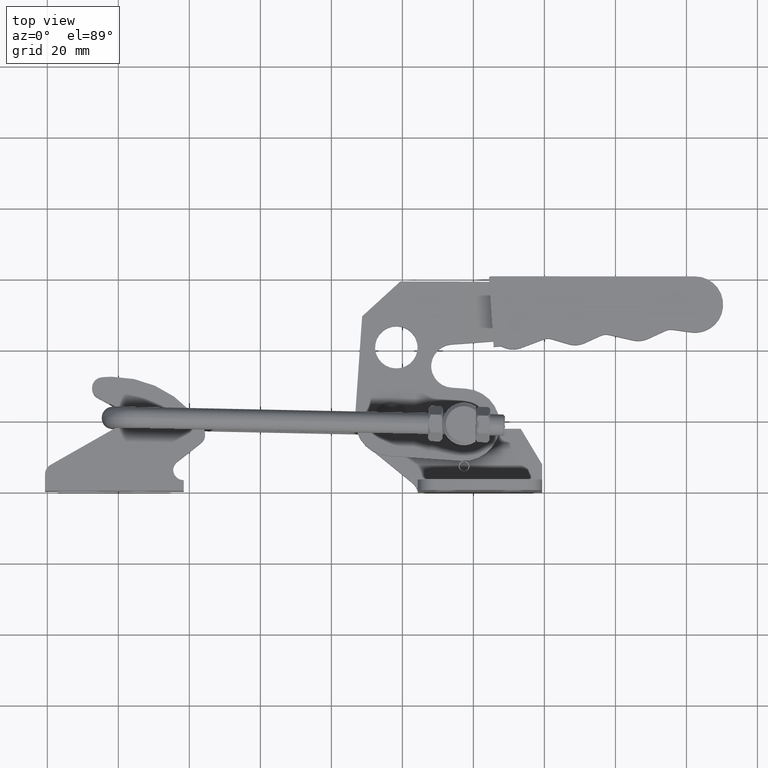
[diagram: clean part render]
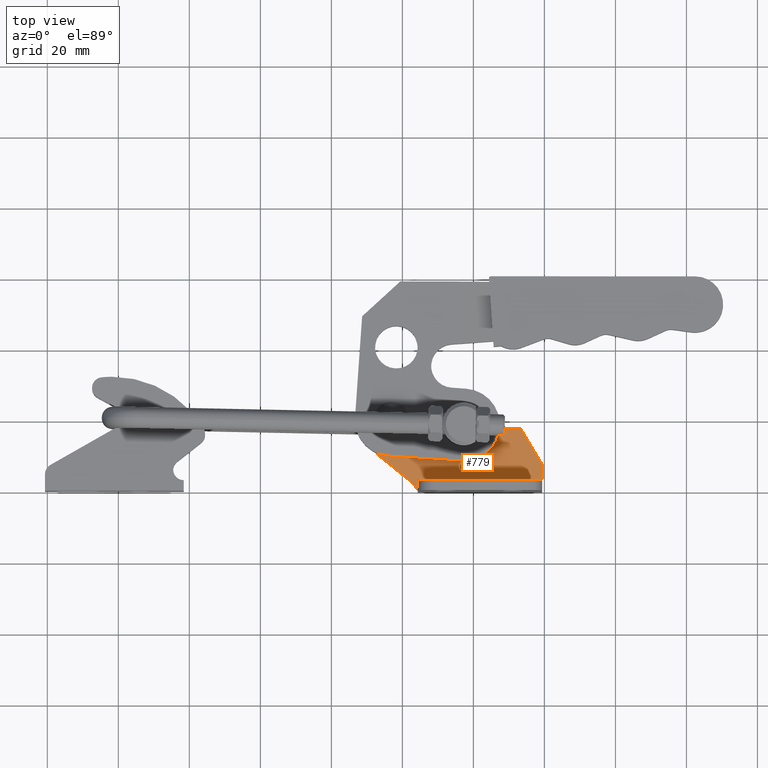
[diagram: same view with one face highlighted and labeled with its STEP entity id]
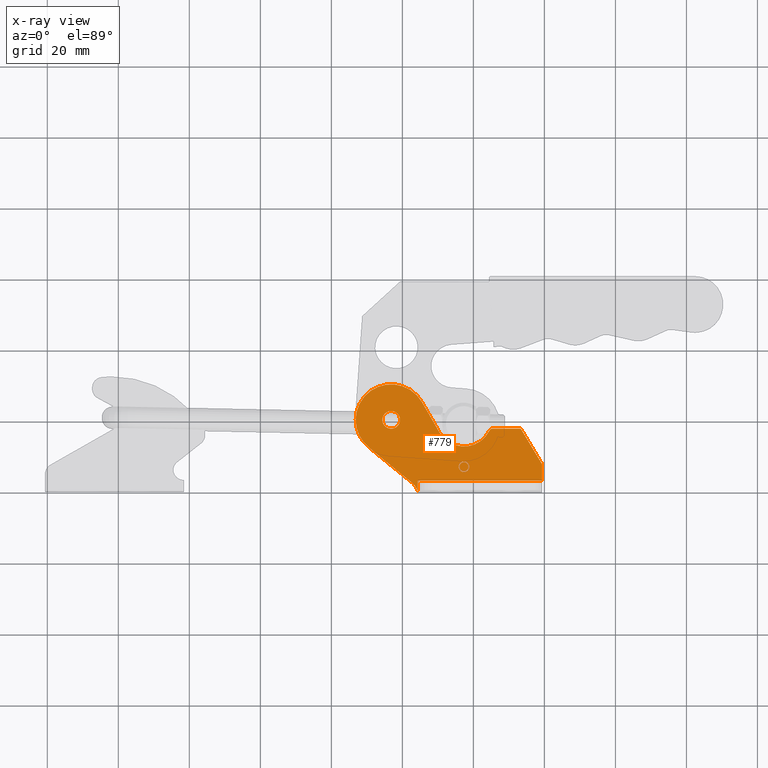
[diagram: x-ray of the same camera — body ghosted, the highlighted face saturated]
A machine part, top view. The second image highlights one B-rep face of the part: STEP entity #779.
The next image is the same camera in x-ray: the body ghosted, the highlighted face saturated — about 0% of this face is hidden behind the body in this view.
In plain terms, the highlighted planar face has unit normal (0, -0, -1).
Its self-contained STEP definition (entity closure, byte-faithful):
#19 = ORIENTED_EDGE ( 'NONE', *, *, #1735, .F. ) ;
#84 = CARTESIAN_POINT ( 'NONE',  ( -37.37134939672738900, 2.494397188489918500, 2.999999999999537300 ) ) ;
#104 = CARTESIAN_POINT ( 'NONE',  ( -21.15470053837901800, 6.902160921898794000, 2.999999999999537300 ) ) ;
#128 = VERTEX_POINT ( 'NONE', #2259 ) ;
#155 = CARTESIAN_POINT ( 'NONE',  ( -35.66278468269342000, 0.0000000000000000000, 2.999999999999537300 ) ) ;
#299 = VECTOR ( 'NONE', #6152, 1000.000000000000000 ) ;
#338 = ORIENTED_EDGE ( 'NONE', *, *, #4036, .F. ) ;
#444 = CARTESIAN_POINT ( 'NONE',  ( -22.65470053837901800, 6.902160921898794000, 2.999999999999537300 ) ) ;
#503 = VECTOR ( 'NONE', #6677, 1000.000000000000000 ) ;
#590 = DIRECTION ( 'NONE',  ( 5.309730411375259600E-017, -1.035205200069190100E-031, -1.000000000000000000 ) ) ;
#653 = CARTESIAN_POINT ( 'NONE',  ( -6.663306728654911900, 17.59999999999976300, 2.999999999999538600 ) ) ;
#697 = DIRECTION ( 'NONE',  ( 1.000000000000000000, -2.775557561562891400E-017, 5.309730411375259600E-017 ) ) ;
#779 = ADVANCED_FACE ( 'NONE', ( #9261, #7455, #3222 ), #8611, .F. ) ;
#832 = VERTEX_POINT ( 'NONE', #4849 ) ;
#840 = LINE ( 'NONE', #6172, #8342 ) ;
#908 = ORIENTED_EDGE ( 'NONE', *, *, #2830, .F. ) ;
#914 = AXIS2_PLACEMENT_3D ( 'NONE', #1354, #5016, #1489 ) ;
#917 = CARTESIAN_POINT ( 'NONE',  ( -35.66102501600772700, 3.000000000000000900, 2.999999999999537300 ) ) ;
#927 = EDGE_CURVE ( 'NONE', #6850, #7038, #7560, .T. ) ;
#1037 = VECTOR ( 'NONE', #9507, 1000.000000000000000 ) ;
#1056 = VERTEX_POINT ( 'NONE', #3751 ) ;
#1166 = CARTESIAN_POINT ( 'NONE',  ( -43.15470053837921000, 20.10000000000000500, 2.999999999999536800 ) ) ;
#1188 = CIRCLE ( 'NONE', #9555, 1.500000000000001300 ) ;
#1196 = DIRECTION ( 'NONE',  ( -1.000000000000000000, 0.0000000000000000000, 0.0000000000000000000 ) ) ;
#1222 = VECTOR ( 'NONE', #9151, 1000.000000000000000 ) ;
#1227 = CARTESIAN_POINT ( 'NONE',  ( -14.59244279008085200, 17.59999999999976300, 2.999999999999538100 ) ) ;
#1229 = CARTESIAN_POINT ( 'NONE',  ( -22.65470053837901800, 6.902160921898794000, 2.999999999999537300 ) ) ;
#1272 = CIRCLE ( 'NONE', #1404, 10.00000000000000900 ) ;
#1307 = EDGE_CURVE ( 'NONE', #7639, #6850, #3438, .T. ) ;
#1354 = CARTESIAN_POINT ( 'NONE',  ( -22.65470053837901800, 6.902160921898794000, 2.999999999999537300 ) ) ;
#1358 = EDGE_CURVE ( 'NONE', #2512, #2687, #6275, .T. ) ;
#1369 = EDGE_CURVE ( 'NONE', #3548, #9340, #2296, .T. ) ;
#1392 = CARTESIAN_POINT ( 'NONE',  ( -35.66102501600772700, 0.0000000000000000000, 2.999999999999537300 ) ) ;
#1404 = AXIS2_PLACEMENT_3D ( 'NONE', #1166, #6413, #1928 ) ;
#1466 = DIRECTION ( 'NONE',  ( 0.0000000000000000000, 1.000000000000000000, -5.525634816903321600E-018 ) ) ;
#1472 = EDGE_CURVE ( 'NONE', #6352, #832, #3782, .T. ) ;
#1489 = DIRECTION ( 'NONE',  ( -1.000000000000000000, 0.0000000000000000000, 0.0000000000000000000 ) ) ;
#1596 = VECTOR ( 'NONE', #3856, 1000.000000000000000 ) ;
#1680 = CARTESIAN_POINT ( 'NONE',  ( -14.59244279008085200, 16.59999999999982000, 2.999999999999538100 ) ) ;
#1694 = CARTESIAN_POINT ( 'NONE',  ( -43.15470053837923100, 20.10000000000000900, 2.999999999999537300 ) ) ;
#1698 = CIRCLE ( 'NONE', #9638, 1.500000000000001300 ) ;
#1735 = EDGE_CURVE ( 'NONE', #2687, #6352, #7189, .T. ) ;
#1757 = ORIENTED_EDGE ( 'NONE', *, *, #9843, .T. ) ;
#1824 = EDGE_LOOP ( 'NONE', ( #3911, #908, #7558, #19, #7992, #2551, #6503, #9217, #6588, #4152, #6906, #338, #7538, #2572, #7418 ) ) ;
#1852 = CARTESIAN_POINT ( 'NONE',  ( -0.6610250160080863900, 3.000000000000000000, 2.999999999999539000 ) ) ;
#1854 = VERTEX_POINT ( 'NONE', #5996 ) ;
#1905 = VERTEX_POINT ( 'NONE', #9199 ) ;
#1928 = DIRECTION ( 'NONE',  ( 1.000000000000000000, 0.0000000000000000000, 4.336808689942014000E-017 ) ) ;
#1943 = CARTESIAN_POINT ( 'NONE',  ( -29.58146922944036200, 16.59751633350799700, 2.999999999999537700 ) ) ;
#1995 = DIRECTION ( 'NONE',  ( -1.000000000000000000, 0.0000000000000000000, 0.0000000000000000000 ) ) ;
#2066 = VERTEX_POINT ( 'NONE', #4085 ) ;
#2083 = AXIS2_PLACEMENT_3D ( 'NONE', #2787, #8037, #3523 ) ;
#2190 = CARTESIAN_POINT ( 'NONE',  ( -0.6547005383795384500, 0.0000000000000000000, 2.999999999999539000 ) ) ;
#2259 = CARTESIAN_POINT ( 'NONE',  ( -45.65470053837923800, 20.10000000000000900, 2.999999999999537300 ) ) ;
#2296 = CIRCLE ( 'NONE', #914, 1.500000000000001300 ) ;
#2337 = DIRECTION ( 'NONE',  ( -0.7754255194175293500, 0.6314390420587364700, -5.977012531472729700E-017 ) ) ;
#2341 = CARTESIAN_POINT ( 'NONE',  ( -22.65470053837901800, 6.902160921898794000, 2.999999999999537300 ) ) ;
#2379 = AXIS2_PLACEMENT_3D ( 'NONE', #3333, #4938, #6691 ) ;
#2401 = EDGE_CURVE ( 'NONE', #2405, #3151, #9097, .T. ) ;
#2405 = VERTEX_POINT ( 'NONE', #4022 ) ;
#2427 = DIRECTION ( 'NONE',  ( 1.000000000000000000, 0.0000000000000000000, 0.0000000000000000000 ) ) ;
#2441 = DIRECTION ( 'NONE',  ( 1.000000000000000000, 0.0000000000000000000, 0.0000000000000000000 ) ) ;
#2493 = ORIENTED_EDGE ( 'NONE', *, *, #8742, .T. ) ;
#2512 = VERTEX_POINT ( 'NONE', #1227 ) ;
#2551 = ORIENTED_EDGE ( 'NONE', *, *, #8423, .F. ) ;
#2572 = ORIENTED_EDGE ( 'NONE', *, *, #1307, .T. ) ;
#2617 = VERTEX_POINT ( 'NONE', #7350 ) ;
#2649 = CARTESIAN_POINT ( 'NONE',  ( -35.66102501600772700, 3.000000000000000900, 2.999999999999537300 ) ) ;
#2666 = EDGE_CURVE ( 'NONE', #7639, #6064, #8228, .T. ) ;
#2687 = VERTEX_POINT ( 'NONE', #7414 ) ;
#2761 = CARTESIAN_POINT ( 'NONE',  ( -40.74541713113004000, -1.649056179500790300, 2.999999999999537300 ) ) ;
#2787 = CARTESIAN_POINT ( 'NONE',  ( -40.74541713113004000, -1.649056179500790300, 2.999999999999537300 ) ) ;
#2830 = EDGE_CURVE ( 'NONE', #832, #1056, #840, .T. ) ;
#2865 = DIRECTION ( 'NONE',  ( 1.000000000000000000, -2.775557561562891400E-017, 5.309730411375259600E-017 ) ) ;
#2937 = CIRCLE ( 'NONE', #9161, 1.250000000000001100 ) ;
#2985 = ORIENTED_EDGE ( 'NONE', *, *, #5833, .T. ) ;
#3085 = DIRECTION ( 'NONE',  ( -1.000000000000000000, 0.0000000000000000000, 0.0000000000000000000 ) ) ;
#3151 = VERTEX_POINT ( 'NONE', #6629 ) ;
#3222 = FACE_BOUND ( 'NONE', #7101, .T. ) ;
#3333 = CARTESIAN_POINT ( 'NONE',  ( -22.65470053837901800, 6.902160921898794000, 2.999999999999537300 ) ) ;
#3351 = CARTESIAN_POINT ( 'NONE',  ( -22.65470053837923500, 20.59999999999988400, 2.999999999999538100 ) ) ;
#3438 = LINE ( 'NONE', #1392, #7203 ) ;
#3451 = DIRECTION ( 'NONE',  ( 0.5003104583114885700, -0.8658460863826481500, 5.765170760582720500E-017 ) ) ;
#3523 = DIRECTION ( 'NONE',  ( 1.000000000000000000, -4.058054758129817300E-017, 8.116109516259634600E-017 ) ) ;
#3548 = VERTEX_POINT ( 'NONE', #5886 ) ;
#3557 = VECTOR ( 'NONE', #2865, 1000.000000000000000 ) ;
#3592 = CARTESIAN_POINT ( 'NONE',  ( -22.55470053837902000, 8.398823876608371800, 2.999999999999537300 ) ) ;
#3628 = ORIENTED_EDGE ( 'NONE', *, *, #6103, .F. ) ;
#3735 = VECTOR ( 'NONE', #1466, 1000.000000000000000 ) ;
#3751 = CARTESIAN_POINT ( 'NONE',  ( -0.6610250160080863900, -8.673617379884035500E-016, 2.999999999999539000 ) ) ;
#3782 = LINE ( 'NONE', #4629, #1596 ) ;
#3797 = CIRCLE ( 'NONE', #7456, 1.250000000000001100 ) ;
#3850 = EDGE_LOOP ( 'NONE', ( #3628, #7897 ) ) ;
#3856 = DIRECTION ( 'NONE',  ( 0.0000000000000000000, -1.000000000000000000, 5.525634816903321600E-018 ) ) ;
#3911 = ORIENTED_EDGE ( 'NONE', *, *, #4196, .F. ) ;
#3961 = EDGE_CURVE ( 'NONE', #8851, #3548, #1188, .T. ) ;
#3992 = EDGE_CURVE ( 'NONE', #3151, #8779, #2937, .T. ) ;
#4014 = CIRCLE ( 'NONE', #6825, 0.9999999999999401600 ) ;
#4022 = CARTESIAN_POINT ( 'NONE',  ( -22.75470053837901900, 8.148154501336504700, 2.999999999999537300 ) ) ;
#4036 = EDGE_CURVE ( 'NONE', #6064, #1905, #8668, .T. ) ;
#4085 = CARTESIAN_POINT ( 'NONE',  ( -29.58146922944036200, 16.59751633350799700, 2.999999999999537700 ) ) ;
#4105 = DIRECTION ( 'NONE',  ( 1.000000000000000000, 0.0000000000000000000, 5.421010862427561600E-017 ) ) ;
#4134 = CARTESIAN_POINT ( 'NONE',  ( -6.663306728654911900, 17.59999999999976300, 2.999999999999538600 ) ) ;
#4152 = ORIENTED_EDGE ( 'NONE', *, *, #5807, .F. ) ;
#4159 = CARTESIAN_POINT ( 'NONE',  ( -22.75470053837901900, 8.398823876608371800, 2.999999999999537300 ) ) ;
#4196 = EDGE_CURVE ( 'NONE', #1056, #7038, #5746, .T. ) ;
#4278 = CARTESIAN_POINT ( 'NONE',  ( -43.15470053837923100, 20.10000000000000900, 2.999999999999537300 ) ) ;
#4343 = DIRECTION ( 'NONE',  ( 2.465190328815661900E-031, -1.020467737676037100E-031, -1.000000000000000000 ) ) ;
#4371 = CARTESIAN_POINT ( 'NONE',  ( -22.75470053837901900, 8.398823876608371800, 2.999999999999537300 ) ) ;
#4398 = CARTESIAN_POINT ( 'NONE',  ( -22.65470053837901800, 6.902160921898794000, 2.999999999999537300 ) ) ;
#4426 = CARTESIAN_POINT ( 'NONE',  ( -21.40470053837901800, 6.902160921898794000, 2.999999999999537300 ) ) ;
#4618 = AXIS2_PLACEMENT_3D ( 'NONE', #3351, #8597, #4105 ) ;
#4629 = CARTESIAN_POINT ( 'NONE',  ( -0.6547005383795384500, 0.0000000000000000000, 2.999999999999539000 ) ) ;
#4773 = AXIS2_PLACEMENT_3D ( 'NONE', #2761, #590, #697 ) ;
#4849 = CARTESIAN_POINT ( 'NONE',  ( -0.6547005383795384500, 0.0000000000000000000, 2.999999999999539000 ) ) ;
#4899 = VERTEX_POINT ( 'NONE', #6062 ) ;
#4903 = EDGE_CURVE ( 'NONE', #1905, #1854, #5007, .T. ) ;
#4938 = DIRECTION ( 'NONE',  ( -2.465190328815661900E-031, 1.020467737676037100E-031, 1.000000000000000000 ) ) ;
#4953 = VECTOR ( 'NONE', #3451, 1000.000000000000200 ) ;
#5007 = LINE ( 'NONE', #84, #6572 ) ;
#5016 = DIRECTION ( 'NONE',  ( 2.465190328815661900E-031, -1.020467737676037100E-031, -1.000000000000000000 ) ) ;
#5023 = DIRECTION ( 'NONE',  ( 1.000000000000000000, 0.0000000000000000000, 0.0000000000000000000 ) ) ;
#5141 = DIRECTION ( 'NONE',  ( -1.000000000000000000, 0.0000000000000000000, 0.0000000000000000000 ) ) ;
#5196 = LINE ( 'NONE', #1943, #4953 ) ;
#5447 = DIRECTION ( 'NONE',  ( 0.0000000000000000000, 1.000000000000000000, -5.525634816903321600E-018 ) ) ;
#5482 = LINE ( 'NONE', #3592, #9572 ) ;
#5551 = CARTESIAN_POINT ( 'NONE',  ( -15.48824920655840900, 17.04444444444425200, 2.999999999999538100 ) ) ;
#5567 = VERTEX_POINT ( 'NONE', #7516 ) ;
#5670 = DIRECTION ( 'NONE',  ( 2.465190328815661900E-031, -1.020467737676037100E-031, -1.000000000000000000 ) ) ;
#5746 = LINE ( 'NONE', #8942, #3735 ) ;
#5807 = EDGE_CURVE ( 'NONE', #1854, #4899, #1272, .T. ) ;
#5833 = EDGE_CURVE ( 'NONE', #9340, #2405, #9289, .T. ) ;
#5886 = CARTESIAN_POINT ( 'NONE',  ( -24.15470053837901800, 6.902160921898794000, 2.999999999999537300 ) ) ;
#5996 = CARTESIAN_POINT ( 'NONE',  ( -49.46909095896657500, 12.34574480582470500, 2.999999999999536400 ) ) ;
#6060 = CIRCLE ( 'NONE', #9189, 2.500000000000002200 ) ;
#6062 = CARTESIAN_POINT ( 'NONE',  ( -53.15470053837921700, 20.10000000000000500, 2.999999999999536800 ) ) ;
#6064 = VERTEX_POINT ( 'NONE', #155 ) ;
#6103 = EDGE_CURVE ( 'NONE', #6246, #128, #6060, .T. ) ;
#6152 = DIRECTION ( 'NONE',  ( 1.000000000000000000, -2.775557561562891400E-017, 3.857767021771941300E-017 ) ) ;
#6172 = CARTESIAN_POINT ( 'NONE',  ( -0.6547005383795384500, 0.0000000000000000000, 2.999999999999539000 ) ) ;
#6246 = VERTEX_POINT ( 'NONE', #6340 ) ;
#6275 = LINE ( 'NONE', #4134, #299 ) ;
#6340 = CARTESIAN_POINT ( 'NONE',  ( -40.65470053837923100, 20.10000000000000900, 2.999999999999537300 ) ) ;
#6352 = VERTEX_POINT ( 'NONE', #6439 ) ;
#6413 = DIRECTION ( 'NONE',  ( 2.465190328815661900E-031, -1.020467737676037100E-031, -1.000000000000000000 ) ) ;
#6439 = CARTESIAN_POINT ( 'NONE',  ( -0.6547005383795384500, 7.600000000000002300, 2.999999999999539000 ) ) ;
#6447 = EDGE_CURVE ( 'NONE', #128, #6246, #9263, .T. ) ;
#6471 = DIRECTION ( 'NONE',  ( -2.465190328815661900E-031, 1.020467737676037100E-031, 1.000000000000000000 ) ) ;
#6503 = ORIENTED_EDGE ( 'NONE', *, *, #7068, .F. ) ;
#6523 = EDGE_CURVE ( 'NONE', #4899, #5567, #8736, .T. ) ;
#6572 = VECTOR ( 'NONE', #2337, 1000.000000000000100 ) ;
#6588 = ORIENTED_EDGE ( 'NONE', *, *, #6523, .F. ) ;
#6629 = CARTESIAN_POINT ( 'NONE',  ( -23.90470053837901800, 6.902160921898794000, 2.999999999999537300 ) ) ;
#6677 = DIRECTION ( 'NONE',  ( -1.000000000000000000, 2.775557561562891400E-017, -5.306869081471474300E-017 ) ) ;
#6691 = DIRECTION ( 'NONE',  ( -1.000000000000000000, 6.938893903907222500E-016, 0.0000000000000000000 ) ) ;
#6733 = EDGE_CURVE ( 'NONE', #8779, #2617, #3797, .T. ) ;
#6775 = VERTEX_POINT ( 'NONE', #6869 ) ;
#6800 = AXIS2_PLACEMENT_3D ( 'NONE', #8863, #4343, #9716 ) ;
#6825 = AXIS2_PLACEMENT_3D ( 'NONE', #1680, #6923, #2427 ) ;
#6850 = VERTEX_POINT ( 'NONE', #917 ) ;
#6869 = CARTESIAN_POINT ( 'NONE',  ( -22.55470053837902000, 8.398823876608371800, 2.999999999999537300 ) ) ;
#6906 = ORIENTED_EDGE ( 'NONE', *, *, #4903, .F. ) ;
#6923 = DIRECTION ( 'NONE',  ( 2.465190328815661900E-031, -1.020467737676037100E-031, -1.000000000000000000 ) ) ;
#6939 = DIRECTION ( 'NONE',  ( 0.0000000000000000000, 0.0000000000000000000, 1.000000000000000000 ) ) ;
#7038 = VERTEX_POINT ( 'NONE', #1852 ) ;
#7068 = EDGE_CURVE ( 'NONE', #2066, #8591, #8147, .T. ) ;
#7101 = EDGE_LOOP ( 'NONE', ( #1757, #2493, #9654, #9400, #2985, #8229, #7769, #8011 ) ) ;
#7177 = EDGE_CURVE ( 'NONE', #5567, #2066, #5196, .T. ) ;
#7189 = LINE ( 'NONE', #653, #1222 ) ;
#7203 = VECTOR ( 'NONE', #5447, 1000.000000000000000 ) ;
#7350 = CARTESIAN_POINT ( 'NONE',  ( -22.55470053837902000, 8.148154501336504700, 2.999999999999537300 ) ) ;
#7414 = CARTESIAN_POINT ( 'NONE',  ( -6.663306728654911900, 17.59999999999976300, 2.999999999999538600 ) ) ;
#7418 = ORIENTED_EDGE ( 'NONE', *, *, #927, .T. ) ;
#7455 = FACE_OUTER_BOUND ( 'NONE', #1824, .T. ) ;
#7456 = AXIS2_PLACEMENT_3D ( 'NONE', #2341, #7564, #3085 ) ;
#7516 = CARTESIAN_POINT ( 'NONE',  ( -34.49623967455272600, 25.10310458311490200, 2.999999999999537300 ) ) ;
#7538 = ORIENTED_EDGE ( 'NONE', *, *, #2666, .F. ) ;
#7558 = ORIENTED_EDGE ( 'NONE', *, *, #1472, .F. ) ;
#7560 = LINE ( 'NONE', #2649, #3557 ) ;
#7564 = DIRECTION ( 'NONE',  ( -2.465190328815661900E-031, 1.020467737676037100E-031, 1.000000000000000000 ) ) ;
#7639 = VERTEX_POINT ( 'NONE', #7714 ) ;
#7714 = CARTESIAN_POINT ( 'NONE',  ( -35.66102501600772700, 0.0000000000000000000, 2.999999999999537300 ) ) ;
#7769 = ORIENTED_EDGE ( 'NONE', *, *, #3992, .T. ) ;
#7897 = ORIENTED_EDGE ( 'NONE', *, *, #6447, .F. ) ;
#7992 = ORIENTED_EDGE ( 'NONE', *, *, #1358, .F. ) ;
#8011 = ORIENTED_EDGE ( 'NONE', *, *, #6733, .T. ) ;
#8037 = DIRECTION ( 'NONE',  ( -2.465190328815661900E-031, 1.020467737676037100E-031, 1.000000000000000000 ) ) ;
#8147 = CIRCLE ( 'NONE', #4618, 7.999999999999941400 ) ;
#8228 = LINE ( 'NONE', #2190, #503 ) ;
#8229 = ORIENTED_EDGE ( 'NONE', *, *, #2401, .T. ) ;
#8342 = VECTOR ( 'NONE', #9222, 1000.000000000000000 ) ;
#8423 = EDGE_CURVE ( 'NONE', #8591, #2512, #4014, .T. ) ;
#8591 = VERTEX_POINT ( 'NONE', #5551 ) ;
#8597 = DIRECTION ( 'NONE',  ( -2.465190328815661900E-031, 1.020467737676037100E-031, 1.000000000000000000 ) ) ;
#8611 = PLANE ( 'NONE',  #4773 ) ;
#8668 = CIRCLE ( 'NONE', #2083, 5.343457578109007700 ) ;
#8736 = CIRCLE ( 'NONE', #6800, 10.00000000000000900 ) ;
#8742 = EDGE_CURVE ( 'NONE', #6775, #8851, #1698, .T. ) ;
#8779 = VERTEX_POINT ( 'NONE', #4426 ) ;
#8851 = VERTEX_POINT ( 'NONE', #104 ) ;
#8863 = CARTESIAN_POINT ( 'NONE',  ( -43.15470053837921000, 20.10000000000000500, 2.999999999999536800 ) ) ;
#8875 = DIRECTION ( 'NONE',  ( 1.081306971892378600E-016, 1.000000000000000000, -1.020467737676036900E-031 ) ) ;
#8942 = CARTESIAN_POINT ( 'NONE',  ( -0.6610250160080863900, -8.673617379884035500E-016, 2.999999999999539000 ) ) ;
#9067 = AXIS2_PLACEMENT_3D ( 'NONE', #4278, #9644, #5023 ) ;
#9097 = CIRCLE ( 'NONE', #2379, 1.250000000000001100 ) ;
#9151 = DIRECTION ( 'NONE',  ( 0.5150380749100486000, -0.8571673007021156600, 4.261317877354509300E-017 ) ) ;
#9161 = AXIS2_PLACEMENT_3D ( 'NONE', #1229, #6471, #1995 ) ;
#9189 = AXIS2_PLACEMENT_3D ( 'NONE', #1694, #6939, #2441 ) ;
#9199 = CARTESIAN_POINT ( 'NONE',  ( -37.37134939672738900, 2.494397188489918500, 2.999999999999537300 ) ) ;
#9217 = ORIENTED_EDGE ( 'NONE', *, *, #7177, .F. ) ;
#9222 = DIRECTION ( 'NONE',  ( -1.000000000000000000, 2.775557561562891400E-017, -5.306869081471474300E-017 ) ) ;
#9261 = FACE_BOUND ( 'NONE', #3850, .T. ) ;
#9263 = CIRCLE ( 'NONE', #9067, 2.500000000000002200 ) ;
#9289 = LINE ( 'NONE', #4159, #1037 ) ;
#9340 = VERTEX_POINT ( 'NONE', #4371 ) ;
#9400 = ORIENTED_EDGE ( 'NONE', *, *, #1369, .T. ) ;
#9507 = DIRECTION ( 'NONE',  ( 1.081306971892380600E-016, -1.000000000000000000, 1.020467737676037300E-031 ) ) ;
#9555 = AXIS2_PLACEMENT_3D ( 'NONE', #444, #5670, #1196 ) ;
#9572 = VECTOR ( 'NONE', #8875, 1000.000000000000000 ) ;
#9638 = AXIS2_PLACEMENT_3D ( 'NONE', #4398, #9782, #5141 ) ;
#9644 = DIRECTION ( 'NONE',  ( 0.0000000000000000000, 0.0000000000000000000, 1.000000000000000000 ) ) ;
#9654 = ORIENTED_EDGE ( 'NONE', *, *, #3961, .T. ) ;
#9716 = DIRECTION ( 'NONE',  ( 1.000000000000000000, 0.0000000000000000000, 4.336808689942014000E-017 ) ) ;
#9782 = DIRECTION ( 'NONE',  ( 2.465190328815661900E-031, -1.020467737676037100E-031, -1.000000000000000000 ) ) ;
#9843 = EDGE_CURVE ( 'NONE', #2617, #6775, #5482, .T. ) ;